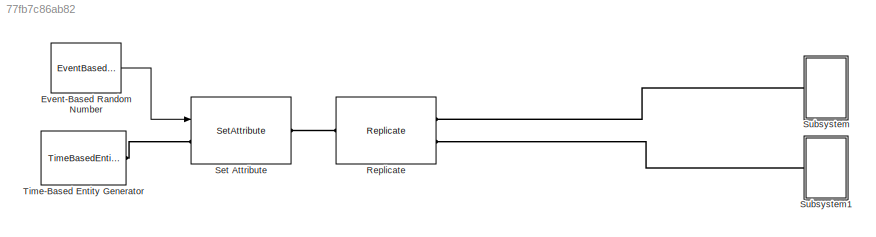
MODEL slx_77fb7c86ab82
KIND model
BLOCK [EventBasedRandomNumber] Event-Based Random Number
  OutputPortMap = o0
  Ports = [0, 1]
BLOCK [Replicate] Replicate
  NumberOutputPorts = 2
  Ports = [0, 0, 0, 0, 0, 1, 2]
BLOCK [SetAttribute] Set Attribute
  AttributeFrom = Dialog|Signal port
  AttributeName = Attribute1|ServiceTime
  AttributeTreatAsVector = 1|1
  AttributeValue = 1|1
  EvaluatedAttributeValue = { 1;[]}
  InputPortMap = u1
  Ports = [1, 0, 0, 0, 0, 1, 1]
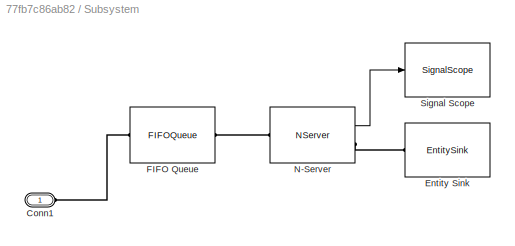
BLOCK [SubSystem] Subsystem
  FunctionWithSeparateData = off
  MaskHideContents = off
  MinAlgLoopOccurrences = off
  Opaque = off
  Ports = [0, 0, 0, 0, 0, 1]
  PropExecContextOutsideSubsystem = off
  RTWSystemCode = Auto
  RequestExecContextInheritance = off
BLOCK [PMIOPort] Subsystem/Conn1
  Port = 1
  Side = Left
BLOCK [EntitySink] Subsystem/Entity Sink
  Ports = [0, 0, 0, 0, 0, 1]
BLOCK [FIFOQueue] Subsystem/FIFO Queue
  Ports = [0, 0, 0, 0, 0, 1, 1]
BLOCK [NServer] Subsystem/N-Server
  NumberOfServers = 2
  OutputPortMap = o0
  Ports = [0, 1, 0, 0, 0, 1, 1]
  ServiceTimeFrom = Attribute
  StatNumberDeparted = on
BLOCK [SignalScope] Subsystem/Signal Scope
  CopyFcn = des.scope.CallbackSupport('seCopyFcn',gcbh)
  DeleteFcn = des.scope.CallbackSupport('seDeleteFcn',gcbh)
  InputPortMap = u0
  LoadFcn = des.scope.CallbackSupport('seLoadFcn',gcbh)
  NameChangeFcn = des.scope.CallbackSupport('seNameChangeFcn',gcbh)
  OpenFcn = des.scope.CallbackSupport('seOpenFcn',gcbh)
  Ports = [1]
  PreSaveFcn = des.scope.CallbackSupport('sePreSaveFcn',gcbh)
  StartFcn = des.scope.CallbackSupport('seStartFcn',gcbh)
  StopFcn = des.scope.CallbackSupport('seStopFcn',gcbh)
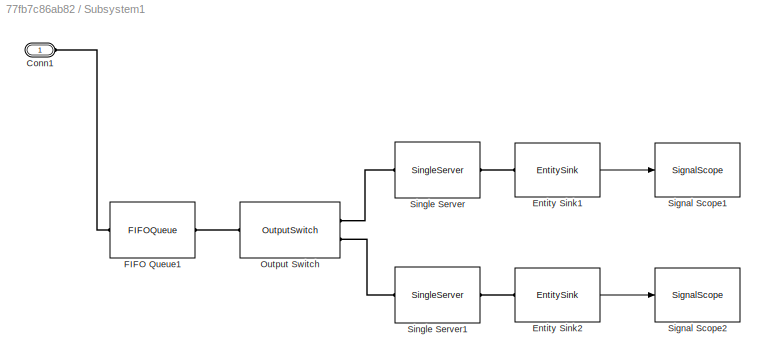
BLOCK [SubSystem] Subsystem1
  FunctionWithSeparateData = off
  MaskHideContents = off
  MinAlgLoopOccurrences = off
  Opaque = off
  Ports = [0, 0, 0, 0, 0, 1]
  PropExecContextOutsideSubsystem = off
  RTWSystemCode = Auto
  RequestExecContextInheritance = off
BLOCK [PMIOPort] Subsystem1/Conn1
  Port = 1
  Side = Left
BLOCK [EntitySink] Subsystem1/Entity Sink1
  OutputPortMap = o0
  Ports = [0, 1, 0, 0, 0, 1]
  StatNumberArrived = on
BLOCK [EntitySink] Subsystem1/Entity Sink2
  OutputPortMap = o0
  Ports = [0, 1, 0, 0, 0, 1]
  StatNumberArrived = on
BLOCK [FIFOQueue] Subsystem1/FIFO Queue1
  Ports = [0, 0, 0, 0, 0, 1, 1]
BLOCK [OutputSwitch] Subsystem1/Output Switch
  NumberOutputPorts = 2
  Ports = [0, 0, 0, 0, 0, 1, 2]
BLOCK [SignalScope] Subsystem1/Signal Scope1
  CopyFcn = des.scope.CallbackSupport('seCopyFcn',gcbh)
  DeleteFcn = des.scope.CallbackSupport('seDeleteFcn',gcbh)
  InputPortMap = u0
  LoadFcn = des.scope.CallbackSupport('seLoadFcn',gcbh)
  NameChangeFcn = des.scope.CallbackSupport('seNameChangeFcn',gcbh)
  OpenFcn = des.scope.CallbackSupport('seOpenFcn',gcbh)
  Ports = [1]
  PreSaveFcn = des.scope.CallbackSupport('sePreSaveFcn',gcbh)
  StartFcn = des.scope.CallbackSupport('seStartFcn',gcbh)
  StopFcn = des.scope.CallbackSupport('seStopFcn',gcbh)
BLOCK [SignalScope] Subsystem1/Signal Scope2
  CopyFcn = des.scope.CallbackSupport('seCopyFcn',gcbh)
  DeleteFcn = des.scope.CallbackSupport('seDeleteFcn',gcbh)
  InputPortMap = u0
  LoadFcn = des.scope.CallbackSupport('seLoadFcn',gcbh)
  NameChangeFcn = des.scope.CallbackSupport('seNameChangeFcn',gcbh)
  OpenFcn = des.scope.CallbackSupport('seOpenFcn',gcbh)
  Ports = [1]
  PreSaveFcn = des.scope.CallbackSupport('sePreSaveFcn',gcbh)
  StartFcn = des.scope.CallbackSupport('seStartFcn',gcbh)
  StopFcn = des.scope.CallbackSupport('seStopFcn',gcbh)
BLOCK [SingleServer] Subsystem1/Single Server
  Ports = [0, 0, 0, 0, 0, 1, 1]
  ServiceTimeFrom = Attribute
BLOCK [SingleServer] Subsystem1/Single Server1
  Ports = [0, 0, 0, 0, 0, 1, 1]
  ServiceTimeFrom = Attribute
BLOCK [TimeBasedEntityGenerator] Time-Based Entity Generator
  Distribution = Exponential
  Mean = 0.5
  Ports = [0, 0, 0, 0, 0, 0, 1]
LINE Event-Based Random Number:1 -> Set Attribute:1
LINE Subsystem/N-Server:1 -> Subsystem/Signal Scope:1
LINE Subsystem1/Entity Sink1:1 -> Subsystem1/Signal Scope1:1
LINE Subsystem1/Entity Sink2:1 -> Subsystem1/Signal Scope2:1
PLINE Replicate:LConn1 -- Set Attribute:RConn1
PLINE Replicate:RConn1 -- Subsystem:LConn1
PLINE Replicate:RConn2 -- Subsystem1:LConn1
PLINE Set Attribute:LConn1 -- Time-Based Entity Generator:RConn1
PLINE Subsystem/Conn1:RConn1 -- Subsystem/FIFO Queue:LConn1
PLINE Subsystem/Entity Sink:LConn1 -- Subsystem/N-Server:RConn1
PLINE Subsystem/FIFO Queue:RConn1 -- Subsystem/N-Server:LConn1
PLINE Subsystem1/Conn1:RConn1 -- Subsystem1/FIFO Queue1:LConn1
PLINE Subsystem1/Entity Sink1:LConn1 -- Subsystem1/Single Server:RConn1
PLINE Subsystem1/Entity Sink2:LConn1 -- Subsystem1/Single Server1:RConn1
PLINE Subsystem1/FIFO Queue1:RConn1 -- Subsystem1/Output Switch:LConn1
PLINE Subsystem1/Output Switch:RConn1 -- Subsystem1/Single Server:LConn1
PLINE Subsystem1/Output Switch:RConn2 -- Subsystem1/Single Server1:LConn1
